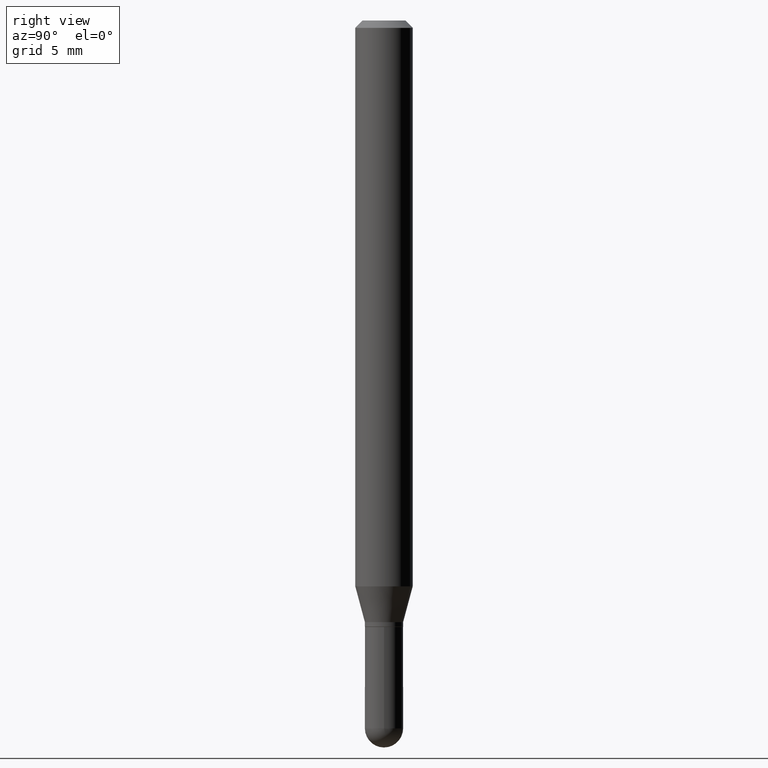
[diagram: clean part render]
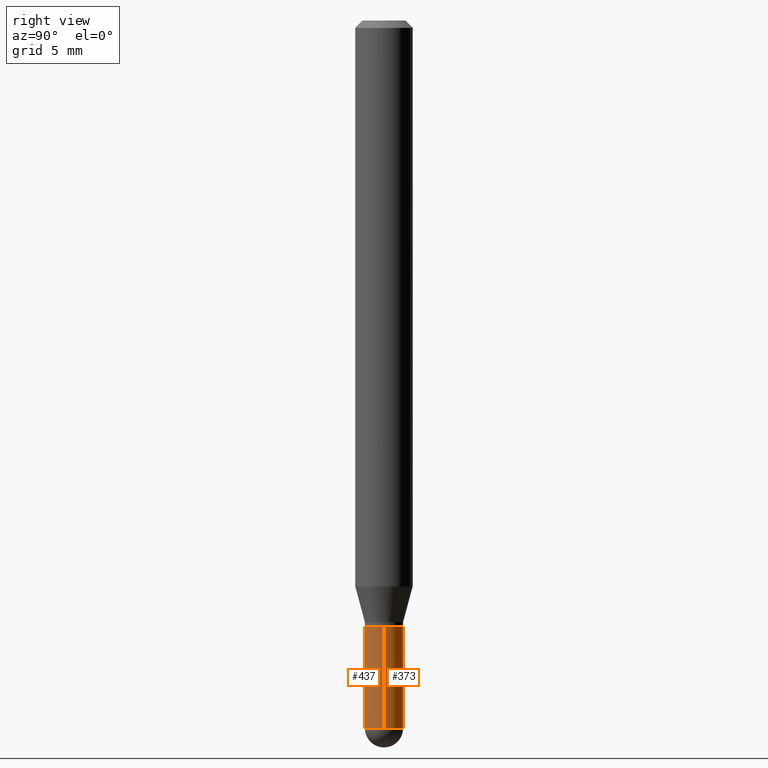
[diagram: same view with one multi-face feature highlighted, each face labeled with its STEP entity id]
A machine part, right view. The highlighted faces form ONE feature: a constant-radius fillet chain: 2 tangent blend faces with common blend radius 0.9995 mm. The faces share edges in the B-rep.
Their STEP definitions:
[1] entity #437 (Cylinder):
#12 = AXIS2_PLACEMENT_3D ( 'NONE', #343, #487, #350 ) ;
#15 = DIRECTION ( 'NONE',  ( 1.000000000000000000, -6.982962677686266711E-15, 4.876176775795936353E-29 ) ) ;
#27 = CARTESIAN_POINT ( 'NONE',  ( 0.03935000000000000303, -2.747795813669546211E-16, 1.918775561275701074E-30 ) ) ;
#34 = EDGE_CURVE ( 'NONE', #434, #473, #167, .T. ) ;
#35 = CARTESIAN_POINT ( 'NONE',  ( -0.03935000000000000303, 2.795985665215994447E-16, -1.935600958015305291E-30 ) ) ;
#40 = VERTEX_POINT ( 'NONE', #478 ) ;
#46 = AXIS2_PLACEMENT_3D ( 'NONE', #131, #500, #96 ) ;
#63 = CARTESIAN_POINT ( 'NONE',  ( 0.03935000000000000303, -4.996746231051896791E-15, -1.456749999999999989 ) ) ;
#69 = ORIENTED_EDGE ( 'NONE', *, *, #255, .T. ) ;
#95 = VECTOR ( 'NONE', #497, 39.37007874015748143 ) ;
#96 = DIRECTION ( 'NONE',  ( 1.000000000000000000, -6.982962677686269077E-15, 0.000000000000000000 ) ) ;
#100 = CYLINDRICAL_SURFACE ( 'NONE', #331, 0.03935000000000000303 ) ;
#107 = VERTEX_POINT ( 'NONE', #213 ) ;
#131 = CARTESIAN_POINT ( 'NONE',  ( 3.052189616999668885E-29, -4.357717859010129969E-15, -1.248099999999999987 ) ) ;
#132 = VERTEX_POINT ( 'NONE', #364 ) ;
#136 = ORIENTED_EDGE ( 'NONE', *, *, #377, .F. ) ;
#167 = CIRCLE ( 'NONE', #242, 0.03935000000000000303 ) ;
#189 = CARTESIAN_POINT ( 'NONE',  ( 3.562436683410197746E-29, -5.086215440359752990E-15, -1.456749999999999989 ) ) ;
#213 = CARTESIAN_POINT ( 'NONE',  ( -0.03935000000000000303, -4.442368083163342479E-15, -1.248099999999999987 ) ) ;
#218 = CARTESIAN_POINT ( 'NONE',  ( 0.000000000000000000, 0.000000000000000000, 0.000000000000000000 ) ) ;
#242 = AXIS2_PLACEMENT_3D ( 'NONE', #189, #355, #509 ) ;
#243 = EDGE_LOOP ( 'NONE', ( #136, #376, #351, #69, #270 ) ) ;
#255 = EDGE_CURVE ( 'NONE', #473, #40, #424, .T. ) ;
#256 = FACE_OUTER_BOUND ( 'NONE', #243, .T. ) ;
#270 = ORIENTED_EDGE ( 'NONE', *, *, #304, .F. ) ;
#295 = EDGE_CURVE ( 'NONE', #132, #434, #303, .T. ) ;
#297 = CIRCLE ( 'NONE', #46, 0.03935000000000000303 ) ;
#303 = CIRCLE ( 'NONE', #12, 0.03935000000000000303 ) ;
#304 = EDGE_CURVE ( 'NONE', #107, #40, #297, .T. ) ;
#310 = DIRECTION ( 'NONE',  ( -2.445468806185136597E-29, 3.491481338843145583E-15, 1.000000000000000000 ) ) ;
#318 = DIRECTION ( 'NONE',  ( -2.445468806185136877E-29, 3.491481338843145188E-15, 1.000000000000000000 ) ) ;
#331 = AXIS2_PLACEMENT_3D ( 'NONE', #218, #310, #15 ) ;
#343 = CARTESIAN_POINT ( 'NONE',  ( 3.562436683410197746E-29, -5.086215440359752990E-15, -1.456749999999999989 ) ) ;
#350 = DIRECTION ( 'NONE',  ( 1.000000000000000000, -6.982962677686269077E-15, 0.000000000000000000 ) ) ;
#351 = ORIENTED_EDGE ( 'NONE', *, *, #34, .T. ) ;
#355 = DIRECTION ( 'NONE',  ( -2.445468806185136597E-29, 3.491481338843145583E-15, 1.000000000000000000 ) ) ;
#364 = CARTESIAN_POINT ( 'NONE',  ( -0.03935000000000000303, -4.442368083163343268E-15, -1.456749999999999989 ) ) ;
#376 = ORIENTED_EDGE ( 'NONE', *, *, #295, .T. ) ;
#377 = EDGE_CURVE ( 'NONE', #132, #107, #511, .T. ) ;
#424 = LINE ( 'NONE', #27, #95 ) ;
#434 = VERTEX_POINT ( 'NONE', #490 ) ;
#437 = ADVANCED_FACE ( 'NONE', ( #256 ), #100, .T. ) ;
#473 = VERTEX_POINT ( 'NONE', #63 ) ;
#474 = VECTOR ( 'NONE', #318, 39.37007874015748143 ) ;
#478 = CARTESIAN_POINT ( 'NONE',  ( 0.03935000000000000303, -4.632497440377084886E-15, -1.248099999999999987 ) ) ;
#487 = DIRECTION ( 'NONE',  ( -2.445468806185136597E-29, 3.491481338843145583E-15, 1.000000000000000000 ) ) ;
#490 = CARTESIAN_POINT ( 'NONE',  ( -2.747795813669189251E-16, -0.03935000000000508230, -1.456749999999999767 ) ) ;
#497 = DIRECTION ( 'NONE',  ( -2.445468806185136877E-29, 3.491481338843145188E-15, 1.000000000000000000 ) ) ;
#500 = DIRECTION ( 'NONE',  ( -2.445468806185136597E-29, 3.491481338843145583E-15, 1.000000000000000000 ) ) ;
#509 = DIRECTION ( 'NONE',  ( 1.000000000000000000, -6.982962677686269077E-15, 0.000000000000000000 ) ) ;
#511 = LINE ( 'NONE', #35, #474 ) ;
[2] entity #373 (Cylinder):
#8 = AXIS2_PLACEMENT_3D ( 'NONE', #90, #417, #383 ) ;
#27 = CARTESIAN_POINT ( 'NONE',  ( 0.03935000000000000303, -2.747795813669546211E-16, 1.918775561275701074E-30 ) ) ;
#35 = CARTESIAN_POINT ( 'NONE',  ( -0.03935000000000000303, 2.795985665215994447E-16, -1.935600958015305291E-30 ) ) ;
#40 = VERTEX_POINT ( 'NONE', #478 ) ;
#56 = CIRCLE ( 'NONE', #226, 0.03935000000000000303 ) ;
#63 = CARTESIAN_POINT ( 'NONE',  ( 0.03935000000000000303, -4.996746231051896791E-15, -1.456749999999999989 ) ) ;
#64 = AXIS2_PLACEMENT_3D ( 'NONE', #285, #469, #192 ) ;
#77 = EDGE_CURVE ( 'NONE', #473, #398, #339, .T. ) ;
#90 = CARTESIAN_POINT ( 'NONE',  ( 3.562436683410197746E-29, -5.086215440359752990E-15, -1.456749999999999989 ) ) ;
#95 = VECTOR ( 'NONE', #497, 39.37007874015748143 ) ;
#107 = VERTEX_POINT ( 'NONE', #213 ) ;
#118 = EDGE_LOOP ( 'NONE', ( #195, #501, #379, #186, #348 ) ) ;
#127 = DIRECTION ( 'NONE',  ( -2.445468806185136597E-29, 3.491481338843145583E-15, 1.000000000000000000 ) ) ;
#132 = VERTEX_POINT ( 'NONE', #364 ) ;
#186 = ORIENTED_EDGE ( 'NONE', *, *, #255, .F. ) ;
#192 = DIRECTION ( 'NONE',  ( 1.000000000000000000, -6.982962677686266711E-15, 4.876176775795936353E-29 ) ) ;
#194 = FACE_OUTER_BOUND ( 'NONE', #118, .T. ) ;
#195 = ORIENTED_EDGE ( 'NONE', *, *, #495, .T. ) ;
#213 = CARTESIAN_POINT ( 'NONE',  ( -0.03935000000000000303, -4.442368083163342479E-15, -1.248099999999999987 ) ) ;
#226 = AXIS2_PLACEMENT_3D ( 'NONE', #349, #452, #486 ) ;
#255 = EDGE_CURVE ( 'NONE', #473, #40, #424, .T. ) ;
#282 = CARTESIAN_POINT ( 'NONE',  ( 2.795985665216349434E-16, 0.03934999999999490294, -1.456750000000000211 ) ) ;
#285 = CARTESIAN_POINT ( 'NONE',  ( 0.000000000000000000, 0.000000000000000000, 0.000000000000000000 ) ) ;
#301 = DIRECTION ( 'NONE',  ( 1.000000000000000000, -6.982962677686269077E-15, 0.000000000000000000 ) ) ;
#318 = DIRECTION ( 'NONE',  ( -2.445468806185136877E-29, 3.491481338843145188E-15, 1.000000000000000000 ) ) ;
#339 = CIRCLE ( 'NONE', #353, 0.03935000000000000303 ) ;
#348 = ORIENTED_EDGE ( 'NONE', *, *, #77, .T. ) ;
#349 = CARTESIAN_POINT ( 'NONE',  ( 3.052189616999668885E-29, -4.357717859010129969E-15, -1.248099999999999987 ) ) ;
#353 = AXIS2_PLACEMENT_3D ( 'NONE', #401, #127, #301 ) ;
#364 = CARTESIAN_POINT ( 'NONE',  ( -0.03935000000000000303, -4.442368083163343268E-15, -1.456749999999999989 ) ) ;
#373 = ADVANCED_FACE ( 'NONE', ( #194 ), #392, .T. ) ;
#377 = EDGE_CURVE ( 'NONE', #132, #107, #511, .T. ) ;
#379 = ORIENTED_EDGE ( 'NONE', *, *, #462, .F. ) ;
#383 = DIRECTION ( 'NONE',  ( 1.000000000000000000, -6.982962677686269077E-15, 0.000000000000000000 ) ) ;
#392 = CYLINDRICAL_SURFACE ( 'NONE', #64, 0.03935000000000000303 ) ;
#398 = VERTEX_POINT ( 'NONE', #282 ) ;
#401 = CARTESIAN_POINT ( 'NONE',  ( 3.562436683410197746E-29, -5.086215440359752990E-15, -1.456749999999999989 ) ) ;
#417 = DIRECTION ( 'NONE',  ( -2.445468806185136597E-29, 3.491481338843145583E-15, 1.000000000000000000 ) ) ;
#424 = LINE ( 'NONE', #27, #95 ) ;
#438 = CIRCLE ( 'NONE', #8, 0.03935000000000000303 ) ;
#452 = DIRECTION ( 'NONE',  ( -2.445468806185136597E-29, 3.491481338843145583E-15, 1.000000000000000000 ) ) ;
#462 = EDGE_CURVE ( 'NONE', #40, #107, #56, .T. ) ;
#469 = DIRECTION ( 'NONE',  ( -2.445468806185136597E-29, 3.491481338843145583E-15, 1.000000000000000000 ) ) ;
#473 = VERTEX_POINT ( 'NONE', #63 ) ;
#474 = VECTOR ( 'NONE', #318, 39.37007874015748143 ) ;
#478 = CARTESIAN_POINT ( 'NONE',  ( 0.03935000000000000303, -4.632497440377084886E-15, -1.248099999999999987 ) ) ;
#486 = DIRECTION ( 'NONE',  ( 1.000000000000000000, -6.982962677686269077E-15, 0.000000000000000000 ) ) ;
#495 = EDGE_CURVE ( 'NONE', #398, #132, #438, .T. ) ;
#497 = DIRECTION ( 'NONE',  ( -2.445468806185136877E-29, 3.491481338843145188E-15, 1.000000000000000000 ) ) ;
#501 = ORIENTED_EDGE ( 'NONE', *, *, #377, .T. ) ;
#511 = LINE ( 'NONE', #35, #474 ) ;